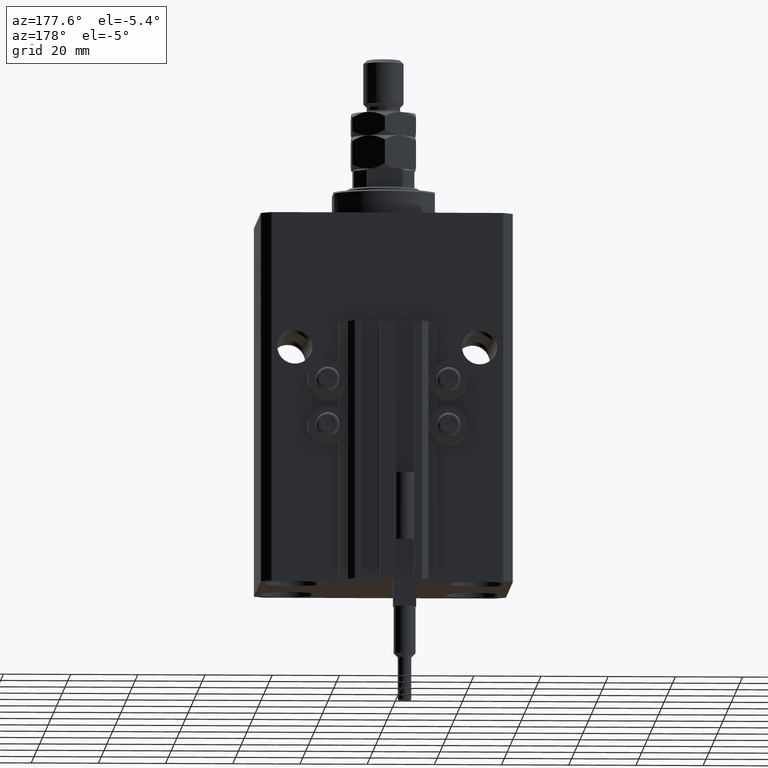
[diagram: clean part render]
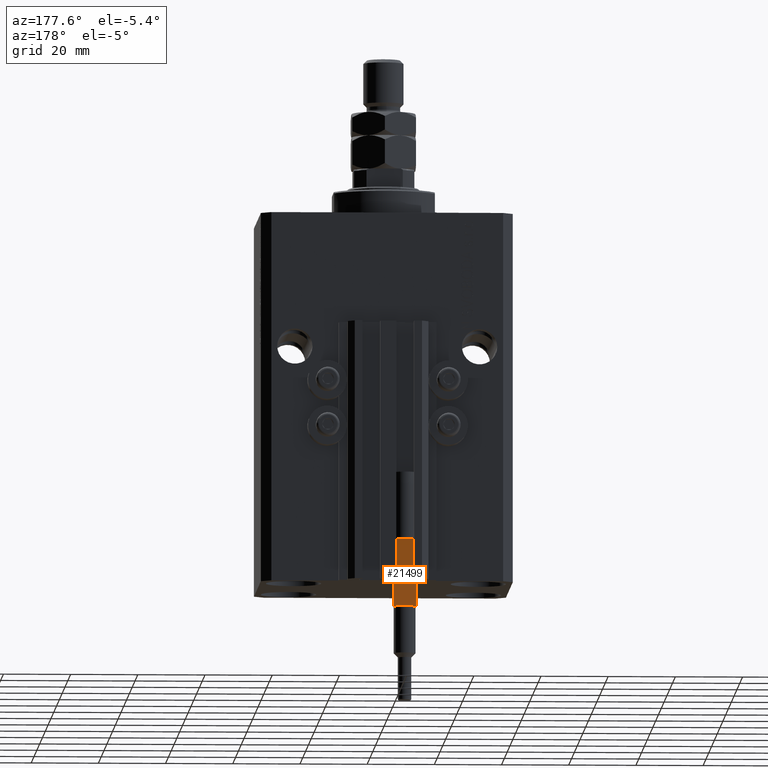
[diagram: same view with one face highlighted and labeled with its STEP entity id]
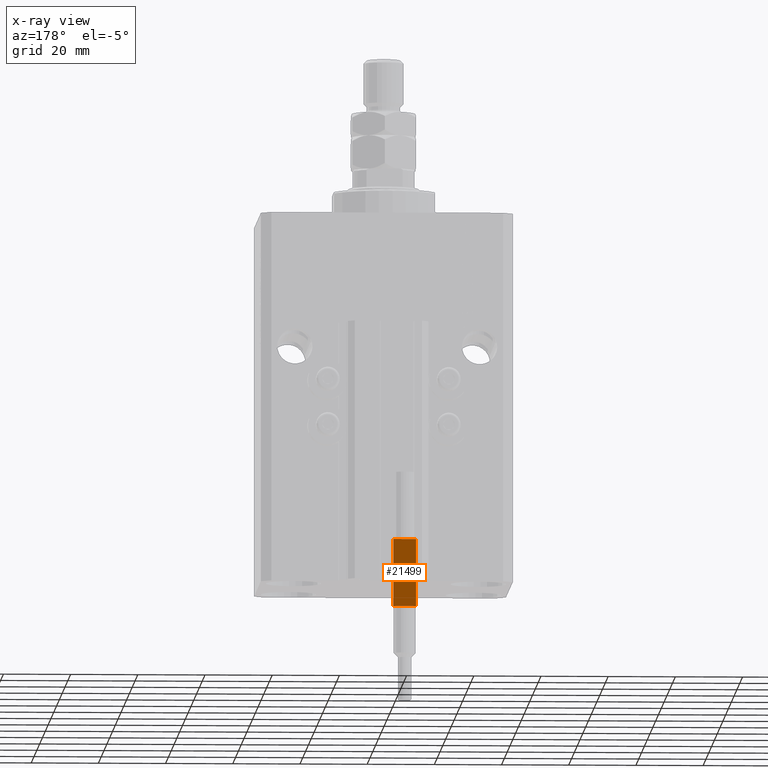
[diagram: x-ray of the same camera — body ghosted, the highlighted face saturated]
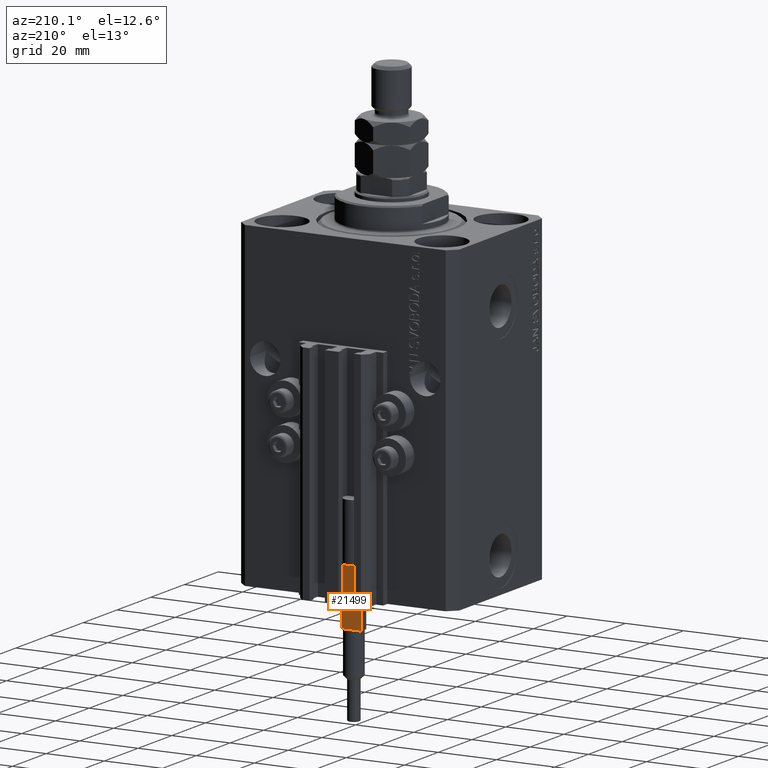
[diagram: same view with one face highlighted and labeled with its STEP entity id]
A machine part, auxiliary view. The second image highlights one B-rep face of the part: STEP entity #21499.
The next image is the same camera in x-ray: the body ghosted, the highlighted face saturated — about 0% of this face is hidden behind the body in this view.
A second angle (auxiliary view) of the same face is appended — the face is thin or edge-on in the first view.
In plain terms, the highlighted planar face has unit normal (0, -1, 0).
Its self-contained STEP definition (entity closure, byte-faithful):
#201 = CARTESIAN_POINT ( 'NONE',  ( -3.399999999999999911, 1.500000000000000000, 20.00000000000000000 ) ) ;
#2374 = VERTEX_POINT ( 'NONE', #26520 ) ;
#2497 = VECTOR ( 'NONE', #35628, 1000.000000000000000 ) ;
#7059 = DIRECTION ( 'NONE',  ( -1.000000000000000000, -0.000000000000000000, -0.000000000000000000 ) ) ;
#8126 = DIRECTION ( 'NONE',  ( -1.000000000000000000, -0.000000000000000000, -0.000000000000000000 ) ) ;
#8451 = ORIENTED_EDGE ( 'NONE', *, *, #38650, .T. ) ;
#9033 = CARTESIAN_POINT ( 'NONE',  ( 3.400000000000000355, 1.500000000000000000, 40.00000000000000000 ) ) ;
#10165 = LINE ( 'NONE', #17627, #14071 ) ;
#11188 = ORIENTED_EDGE ( 'NONE', *, *, #38139, .F. ) ;
#12045 = LINE ( 'NONE', #43107, #48974 ) ;
#13402 = PLANE ( 'NONE',  #32461 ) ;
#14071 = VECTOR ( 'NONE', #25334, 1000.000000000000000 ) ;
#14197 = EDGE_CURVE ( 'NONE', #25853, #48565, #12045, .T. ) ;
#15103 = ORIENTED_EDGE ( 'NONE', *, *, #28133, .T. ) ;
#15743 = LINE ( 'NONE', #27674, #34195 ) ;
#16939 = EDGE_CURVE ( 'NONE', #25576, #34364, #27505, .T. ) ;
#17127 = CARTESIAN_POINT ( 'NONE',  ( -3.399999999999999911, 1.500000000000000000, 40.00000000000000000 ) ) ;
#17285 = ORIENTED_EDGE ( 'NONE', *, *, #14197, .F. ) ;
#17627 = CARTESIAN_POINT ( 'NONE',  ( -3.399999999999999911, 1.500000000000000000, 40.00000000000000000 ) ) ;
#19053 = DIRECTION ( 'NONE',  ( -1.000000000000000000, -0.000000000000000000, -0.000000000000000000 ) ) ;
#19067 = CARTESIAN_POINT ( 'NONE',  ( -2.883140648667699146, 1.500000000000000000, 40.00000000000000000 ) ) ;
#19777 = CARTESIAN_POINT ( 'NONE',  ( 2.883140648667699146, 1.500000000000000000, 40.00000000000000000 ) ) ;
#19982 = LINE ( 'NONE', #9033, #2497 ) ;
#20780 = EDGE_CURVE ( 'NONE', #33133, #25576, #38487, .T. ) ;
#20847 = ORIENTED_EDGE ( 'NONE', *, *, #32179, .F. ) ;
#20871 = FACE_OUTER_BOUND ( 'NONE', #44537, .T. ) ;
#21171 = VECTOR ( 'NONE', #8126, 1000.000000000000000 ) ;
#21499 = ADVANCED_FACE ( 'NONE', ( #20871 ), #13402, .F. ) ;
#23017 = CARTESIAN_POINT ( 'NONE',  ( 3.400000000000000355, 1.500000000000000000, 40.00000000000000000 ) ) ;
#23699 = DIRECTION ( 'NONE',  ( -0.000000000000000000, -0.000000000000000000, -1.000000000000000000 ) ) ;
#24217 = DIRECTION ( 'NONE',  ( -1.000000000000000000, -0.000000000000000000, -0.000000000000000000 ) ) ;
#24901 = VERTEX_POINT ( 'NONE', #45351 ) ;
#25334 = DIRECTION ( 'NONE',  ( -1.000000000000000000, -0.000000000000000000, -0.000000000000000000 ) ) ;
#25576 = VERTEX_POINT ( 'NONE', #28026 ) ;
#25853 = VERTEX_POINT ( 'NONE', #23017 ) ;
#26520 = CARTESIAN_POINT ( 'NONE',  ( 3.400000000000000355, 1.500000000000000000, 20.00000000000000000 ) ) ;
#26772 = LINE ( 'NONE', #45916, #28725 ) ;
#27505 = LINE ( 'NONE', #34708, #21171 ) ;
#27674 = CARTESIAN_POINT ( 'NONE',  ( -3.399999999999999911, 1.500000000000000000, 40.00000000000000000 ) ) ;
#28026 = CARTESIAN_POINT ( 'NONE',  ( -3.051229260478471428, 1.500000000000000000, 20.00000000000000000 ) ) ;
#28133 = EDGE_CURVE ( 'NONE', #25853, #2374, #19982, .T. ) ;
#28544 = ORIENTED_EDGE ( 'NONE', *, *, #16939, .T. ) ;
#28725 = VECTOR ( 'NONE', #19053, 1000.000000000000000 ) ;
#29096 = EDGE_CURVE ( 'NONE', #24901, #34364, #15743, .T. ) ;
#32179 = EDGE_CURVE ( 'NONE', #33675, #24901, #26772, .T. ) ;
#32461 = AXIS2_PLACEMENT_3D ( 'NONE', #17127, #36778, #44231 ) ;
#33133 = VERTEX_POINT ( 'NONE', #46109 ) ;
#33657 = ORIENTED_EDGE ( 'NONE', *, *, #20780, .T. ) ;
#33675 = VERTEX_POINT ( 'NONE', #19067 ) ;
#34195 = VECTOR ( 'NONE', #23699, 1000.000000000000000 ) ;
#34364 = VERTEX_POINT ( 'NONE', #40810 ) ;
#34506 = DIRECTION ( 'NONE',  ( -1.000000000000000000, -0.000000000000000000, -0.000000000000000000 ) ) ;
#34708 = CARTESIAN_POINT ( 'NONE',  ( -3.399999999999999911, 1.500000000000000000, 20.00000000000000000 ) ) ;
#35628 = DIRECTION ( 'NONE',  ( -0.000000000000000000, -0.000000000000000000, -1.000000000000000000 ) ) ;
#36778 = DIRECTION ( 'NONE',  ( 0.000000000000000000, -1.000000000000000000, 0.000000000000000000 ) ) ;
#38139 = EDGE_CURVE ( 'NONE', #48565, #33675, #10165, .T. ) ;
#38487 = LINE ( 'NONE', #201, #38789 ) ;
#38650 = EDGE_CURVE ( 'NONE', #2374, #33133, #44847, .T. ) ;
#38789 = VECTOR ( 'NONE', #34506, 1000.000000000000000 ) ;
#40810 = CARTESIAN_POINT ( 'NONE',  ( -3.399999999999999911, 1.500000000000000000, 20.00000000000000000 ) ) ;
#40992 = ORIENTED_EDGE ( 'NONE', *, *, #29096, .F. ) ;
#41102 = CARTESIAN_POINT ( 'NONE',  ( -3.399999999999999911, 1.500000000000000000, 20.00000000000000000 ) ) ;
#43107 = CARTESIAN_POINT ( 'NONE',  ( -3.399999999999999911, 1.500000000000000000, 40.00000000000000000 ) ) ;
#44231 = DIRECTION ( 'NONE',  ( 0.000000000000000000, -0.000000000000000000, -1.000000000000000000 ) ) ;
#44537 = EDGE_LOOP ( 'NONE', ( #8451, #33657, #28544, #40992, #20847, #11188, #17285, #15103 ) ) ;
#44847 = LINE ( 'NONE', #41102, #48228 ) ;
#45351 = CARTESIAN_POINT ( 'NONE',  ( -3.399999999999999911, 1.500000000000000000, 40.00000000000000000 ) ) ;
#45916 = CARTESIAN_POINT ( 'NONE',  ( -3.399999999999999911, 1.500000000000000000, 40.00000000000000000 ) ) ;
#46109 = CARTESIAN_POINT ( 'NONE',  ( 3.051229260478471428, 1.500000000000000000, 20.00000000000000000 ) ) ;
#48228 = VECTOR ( 'NONE', #7059, 1000.000000000000000 ) ;
#48565 = VERTEX_POINT ( 'NONE', #19777 ) ;
#48974 = VECTOR ( 'NONE', #24217, 1000.000000000000000 ) ;